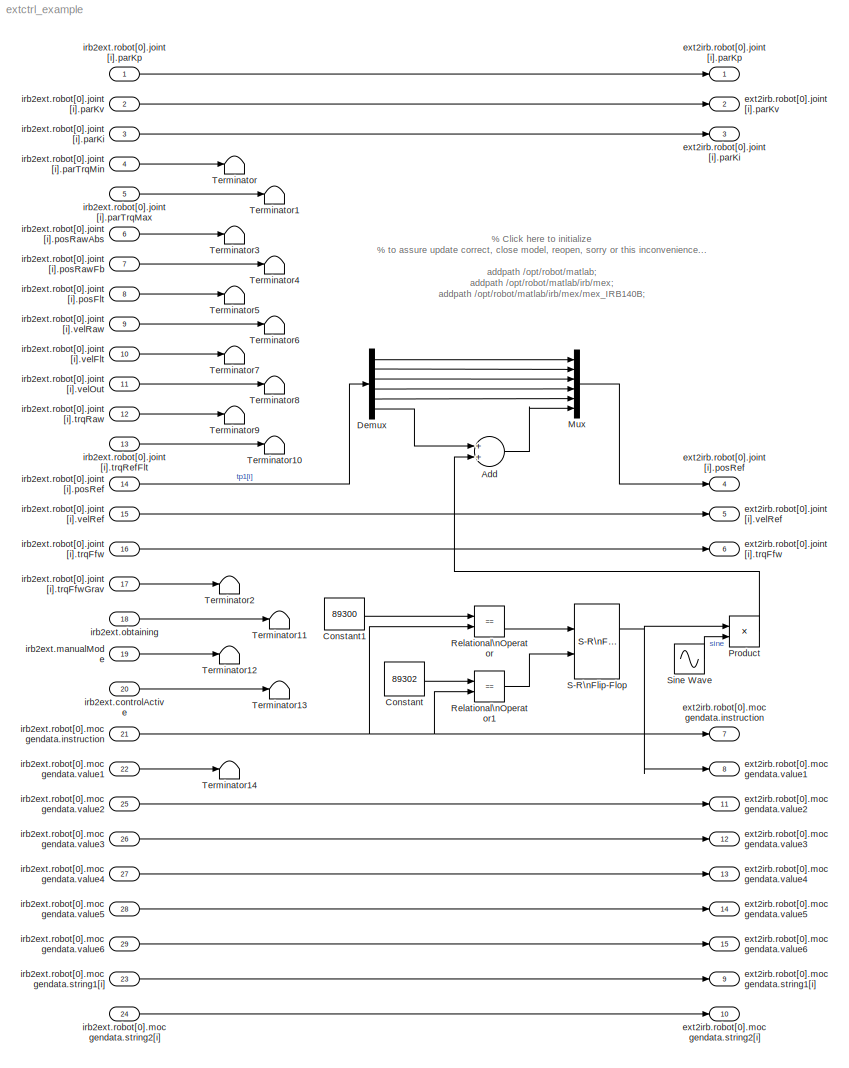
MODEL extctrl_example
KIND model
BLOCK [Sum] Add
  InputSameDT = off
  OutDataTypeStr = Inherit: Inherit via internal rule
  Ports = [2, 1]
  SID = 23
  SaturateOnIntegerOverflow = off
BLOCK [Constant] Constant
  SID = 93
  Value = 89302
BLOCK [Constant] Constant1
  SID = 94
  Value = 89300
BLOCK [Demux] Demux
  DisplayOption = bar
  Outputs = 6
  Ports = [1, 6]
  SID = 24
BLOCK [Mux] Mux
  DisplayOption = bar
  Inputs = 6
  Ports = [6, 1]
  SID = 26
BLOCK [Product] Product
  InputSameDT = off
  OutDataTypeStr = Inherit: Inherit via internal rule
  Ports = [2, 1]
  SID = 90
  SaturateOnIntegerOverflow = off
BLOCK [RelationalOperator] Relational\nOperator
  InputSameDT = off
  Operator = ==
  OutDataTypeStr = boolean
  Ports = [2, 1]
  SID = 89
BLOCK [RelationalOperator] Relational\nOperator1
  InputSameDT = off
  Operator = ==
  OutDataTypeStr = boolean
  Ports = [2, 1]
  SID = 92
BLOCK [Reference] S-R\nFlip-Flop  REF=simulink_extras/Flip Flops/S-R\nFlip-Flop
  Ports = [2, 2]
  SID = 88
  SourceBlock = simulink_extras/Flip Flops/S-R\nFlip-Flop
  SourceType = SRFlipFlop
  initial_condition = 1
BLOCK [Sin] Sine Wave
  Amplitude = amplitude
  Frequency = frequency
  Ports = [0, 1]
  SID = 27
  SampleTime = h
  Samples = frequency
BLOCK [Terminator] Terminator
  SID = 28
BLOCK [Terminator] Terminator1
  SID = 29
BLOCK [Terminator] Terminator10
  SID = 30
BLOCK [Terminator] Terminator11
  SID = 54
BLOCK [Terminator] Terminator12
  SID = 55
BLOCK [Terminator] Terminator13
  SID = 56
BLOCK [Terminator] Terminator14
  SID = 91
BLOCK [Terminator] Terminator2
  SID = 33
BLOCK [Terminator] Terminator3
  SID = 34
BLOCK [Terminator] Terminator4
  SID = 35
BLOCK [Terminator] Terminator5
  SID = 36
BLOCK [Terminator] Terminator6
  SID = 37
BLOCK [Terminator] Terminator7
  SID = 38
BLOCK [Terminator] Terminator8
  SID = 39
BLOCK [Terminator] Terminator9
  SID = 40
BLOCK [Outport] ext2irb.robot[0].joint[i].parKi
  IconDisplay = Port number
  Port = 3
  PortDimensions = DOF
  SID = 43
BLOCK [Outport] ext2irb.robot[0].joint[i].parKp
  IconDisplay = Port number
  PortDimensions = DOF
  SID = 41
BLOCK [Outport] ext2irb.robot[0].joint[i].parKv
  IconDisplay = Port number
  Port = 2
  PortDimensions = DOF
  SID = 42
BLOCK [Outport] ext2irb.robot[0].joint[i].posRef
  IconDisplay = Port number
  Port = 4
  PortDimensions = DOF
  SID = 44
BLOCK [Outport] ext2irb.robot[0].joint[i].trqFfw
  IconDisplay = Port number
  Port = 6
  PortDimensions = DOF
  SID = 48
BLOCK [Outport] ext2irb.robot[0].joint[i].velRef
  IconDisplay = Port number
  Port = 5
  PortDimensions = DOF
  SID = 45
BLOCK [Outport] ext2irb.robot[0].mocgendata.instruction
  IconDisplay = Port number
  Port = 7
  PortDimensions = 1
  SID = 58
BLOCK [Outport] ext2irb.robot[0].mocgendata.string1[i]
  IconDisplay = Port number
  Port = 9
  PortDimensions = 20
  SID = 62
BLOCK [Outport] ext2irb.robot[0].mocgendata.string2[i]
  IconDisplay = Port number
  Port = 10
  PortDimensions = 20
  SID = 76
BLOCK [Outport] ext2irb.robot[0].mocgendata.value1
  IconDisplay = Port number
  Port = 8
  PortDimensions = 1
  SID = 60
BLOCK [Outport] ext2irb.robot[0].mocgendata.value2
  IconDisplay = Port number
  Port = 11
  PortDimensions = 1
  SID = 78
BLOCK [Outport] ext2irb.robot[0].mocgendata.value3
  IconDisplay = Port number
  Port = 12
  PortDimensions = 1
  SID = 80
BLOCK [Outport] ext2irb.robot[0].mocgendata.value4
  IconDisplay = Port number
  Port = 13
  PortDimensions = 1
  SID = 82
BLOCK [Outport] ext2irb.robot[0].mocgendata.value5
  IconDisplay = Port number
  Port = 14
  PortDimensions = 1
  SID = 84
BLOCK [Outport] ext2irb.robot[0].mocgendata.value6
  IconDisplay = Port number
  Port = 15
  PortDimensions = 1
  SID = 86
BLOCK [Inport] irb2ext.controlActive
  IconDisplay = Port number
  Port = 20
  PortDimensions = 1
  SID = 53
  SignalType = real
BLOCK [Inport] irb2ext.manualMode
  IconDisplay = Port number
  Port = 19
  PortDimensions = 1
  SID = 52
  SignalType = real
BLOCK [Inport] irb2ext.obtaining
  IconDisplay = Port number
  Port = 18
  PortDimensions = 1
  SID = 51
  SignalType = real
BLOCK [Inport] irb2ext.robot[0].joint[i].parKi
  IconDisplay = Port number
  Port = 3
  PortDimensions = DOF
  SID = 3
  SignalType = real
BLOCK [Inport] irb2ext.robot[0].joint[i].parKp
  IconDisplay = Port number
  OutDataTypeStr = double
  PortDimensions = DOF
  SID = 1
  SignalType = real
BLOCK [Inport] irb2ext.robot[0].joint[i].parKv
  IconDisplay = Port number
  OutDataTypeStr = double
  Port = 2
  PortDimensions = DOF
  SID = 2
  SignalType = real
BLOCK [Inport] irb2ext.robot[0].joint[i].parTrqMax
  IconDisplay = Port number
  Port = 5
  PortDimensions = DOF
  SID = 5
  SignalType = real
BLOCK [Inport] irb2ext.robot[0].joint[i].parTrqMin
  IconDisplay = Port number
  Port = 4
  PortDimensions = DOF
  SID = 4
  SignalType = real
BLOCK [Inport] irb2ext.robot[0].joint[i].posFlt
  IconDisplay = Port number
  Port = 8
  PortDimensions = DOF
  SID = 8
  SignalType = real
BLOCK [Inport] irb2ext.robot[0].joint[i].posRawAbs
  IconDisplay = Port number
  Port = 6
  PortDimensions = DOF
  SID = 6
  SignalType = real
BLOCK [Inport] irb2ext.robot[0].joint[i].posRawFb
  IconDisplay = Port number
  Port = 7
  PortDimensions = DOF
  SID = 7
  SignalType = real
BLOCK [Inport] irb2ext.robot[0].joint[i].posRef
  IconDisplay = Port number
  Port = 14
  PortDimensions = DOF
  SID = 14
  SignalType = real
BLOCK [Inport] irb2ext.robot[0].joint[i].trqFfw
  IconDisplay = Port number
  Port = 16
  PortDimensions = DOF
  SID = 18
  SignalType = real
BLOCK [Inport] irb2ext.robot[0].joint[i].trqFfwGrav
  IconDisplay = Port number
  Port = 17
  PortDimensions = DOF
  SID = 20
  SignalType = real
BLOCK [Inport] irb2ext.robot[0].joint[i].trqRaw
  IconDisplay = Port number
  Port = 12
  PortDimensions = DOF
  SID = 12
  SignalType = real
BLOCK [Inport] irb2ext.robot[0].joint[i].trqRefFlt
  IconDisplay = Port number
  Port = 13
  PortDimensions = DOF
  SID = 13
  SignalType = real
BLOCK [Inport] irb2ext.robot[0].joint[i].velFlt
  IconDisplay = Port number
  Port = 10
  PortDimensions = DOF
  SID = 10
  SignalType = real
BLOCK [Inport] irb2ext.robot[0].joint[i].velOut
  IconDisplay = Port number
  Port = 11
  PortDimensions = DOF
  SID = 11
  SignalType = real
BLOCK [Inport] irb2ext.robot[0].joint[i].velRaw
  IconDisplay = Port number
  Port = 9
  PortDimensions = DOF
  SID = 9
  SignalType = real
BLOCK [Inport] irb2ext.robot[0].joint[i].velRef
  IconDisplay = Port number
  Port = 15
  PortDimensions = DOF
  SID = 15
  SignalType = real
BLOCK [Inport] irb2ext.robot[0].mocgendata.instruction
  IconDisplay = Port number
  Port = 21
  PortDimensions = 1
  SID = 57
  SignalType = real
BLOCK [Inport] irb2ext.robot[0].mocgendata.string1[i]
  IconDisplay = Port number
  Port = 23
  PortDimensions = 20
  SID = 61
  SignalType = real
BLOCK [Inport] irb2ext.robot[0].mocgendata.string2[i]
  IconDisplay = Port number
  Port = 24
  PortDimensions = 20
  SID = 75
  SignalType = real
BLOCK [Inport] irb2ext.robot[0].mocgendata.value1
  IconDisplay = Port number
  Port = 22
  PortDimensions = 1
  SID = 59
  SignalType = real
BLOCK [Inport] irb2ext.robot[0].mocgendata.value2
  IconDisplay = Port number
  Port = 25
  PortDimensions = 1
  SID = 77
  SignalType = real
BLOCK [Inport] irb2ext.robot[0].mocgendata.value3
  IconDisplay = Port number
  Port = 26
  PortDimensions = 1
  SID = 79
  SignalType = real
BLOCK [Inport] irb2ext.robot[0].mocgendata.value4
  IconDisplay = Port number
  Port = 27
  PortDimensions = 1
  SID = 81
  SignalType = real
BLOCK [Inport] irb2ext.robot[0].mocgendata.value5
  IconDisplay = Port number
  Port = 28
  PortDimensions = 1
  SID = 83
  SignalType = real
BLOCK [Inport] irb2ext.robot[0].mocgendata.value6
  IconDisplay = Port number
  Port = 29
  PortDimensions = 1
  SID = 85
  SignalType = real
ANNOTATION (root): % Click here to initialize\n% to assure update correct, close model, reopen, sorry or this inconvenience...\n\naddpath <path>;\naddpath <path>;\naddpath <path>;\n\nDOF=6;\nh=0.004032;\nfrequency=10;\namplitude=2;\ndisp('Init done');
LINE Add:1 -> Mux:6
LINE Constant1:1 -> Relational\nOperator:1
LINE Constant:1 -> Relational\nOperator1:1
LINE Demux:1 -> Mux:1
LINE Demux:2 -> Mux:2
LINE Demux:3 -> Mux:3
LINE Demux:4 -> Mux:4
LINE Demux:5 -> Mux:5
LINE Demux:6 -> Add:1
LINE Mux:1 -> ext2irb.robot[0].joint[i].posRef:1
LINE Product:1 -> Add:2
LINE Relational\nOperator1:1 -> S-R\nFlip-Flop:2
LINE Relational\nOperator:1 -> S-R\nFlip-Flop:1
NET S-R\nFlip-Flop:1 -> Product:1, ext2irb.robot[0].mocgendata.value1:1
LINE Sine Wave:1 -> Product:2
LINE irb2ext.controlActive:1 -> Terminator13:1
LINE irb2ext.manualMode:1 -> Terminator12:1
LINE irb2ext.obtaining:1 -> Terminator11:1
LINE irb2ext.robot[0].joint[i].parKi:1 -> ext2irb.robot[0].joint[i].parKi:1
LINE irb2ext.robot[0].joint[i].parKp:1 -> ext2irb.robot[0].joint[i].parKp:1
LINE irb2ext.robot[0].joint[i].parKv:1 -> ext2irb.robot[0].joint[i].parKv:1
LINE irb2ext.robot[0].joint[i].parTrqMax:1 -> Terminator1:1
LINE irb2ext.robot[0].joint[i].parTrqMin:1 -> Terminator:1
LINE irb2ext.robot[0].joint[i].posFlt:1 -> Terminator5:1
LINE irb2ext.robot[0].joint[i].posRawAbs:1 -> Terminator3:1
LINE irb2ext.robot[0].joint[i].posRawFb:1 -> Terminator4:1
LINE irb2ext.robot[0].joint[i].posRef:1 -> Demux:1
LINE irb2ext.robot[0].joint[i].trqFfw:1 -> ext2irb.robot[0].joint[i].trqFfw:1
LINE irb2ext.robot[0].joint[i].trqFfwGrav:1 -> Terminator2:1
LINE irb2ext.robot[0].joint[i].trqRaw:1 -> Terminator9:1
LINE irb2ext.robot[0].joint[i].trqRefFlt:1 -> Terminator10:1
LINE irb2ext.robot[0].joint[i].velFlt:1 -> Terminator7:1
LINE irb2ext.robot[0].joint[i].velOut:1 -> Terminator8:1
LINE irb2ext.robot[0].joint[i].velRaw:1 -> Terminator6:1
LINE irb2ext.robot[0].joint[i].velRef:1 -> ext2irb.robot[0].joint[i].velRef:1
NET irb2ext.robot[0].mocgendata.instruction:1 -> Relational\nOperator1:2, Relational\nOperator:2, ext2irb.robot[0].mocgendata.instruction:1
LINE irb2ext.robot[0].mocgendata.string1[i]:1 -> ext2irb.robot[0].mocgendata.string1[i]:1
LINE irb2ext.robot[0].mocgendata.string2[i]:1 -> ext2irb.robot[0].mocgendata.string2[i]:1
LINE irb2ext.robot[0].mocgendata.value1:1 -> Terminator14:1
LINE irb2ext.robot[0].mocgendata.value2:1 -> ext2irb.robot[0].mocgendata.value2:1
LINE irb2ext.robot[0].mocgendata.value3:1 -> ext2irb.robot[0].mocgendata.value3:1
LINE irb2ext.robot[0].mocgendata.value4:1 -> ext2irb.robot[0].mocgendata.value4:1
LINE irb2ext.robot[0].mocgendata.value5:1 -> ext2irb.robot[0].mocgendata.value5:1
LINE irb2ext.robot[0].mocgendata.value6:1 -> ext2irb.robot[0].mocgendata.value6:1
note: NET lines group one-source signal fan-out (src -> all destinations, sorted); 1:1 wires keep LINE
note: 3 file-system paths scrubbed to <path> (not preserved elsewhere — flat text is the only slx artifact)
